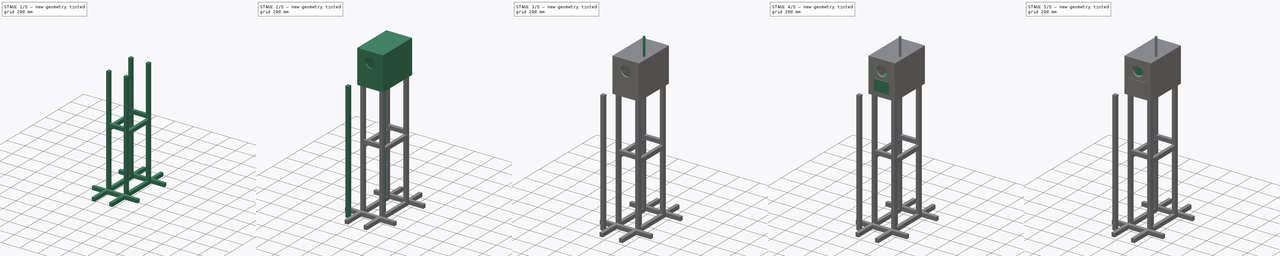
[diagram: build sequence overview — one tinted view per stage of 5, left to right]
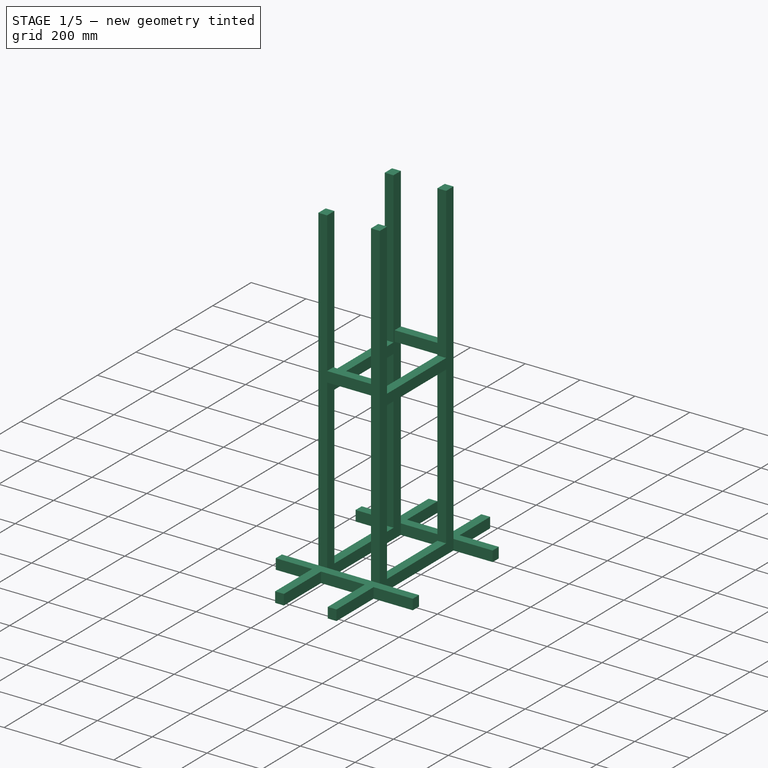
[diagram: stage 1 of 5 — iso view after this stage's code; geometry added in this stage tinted green]
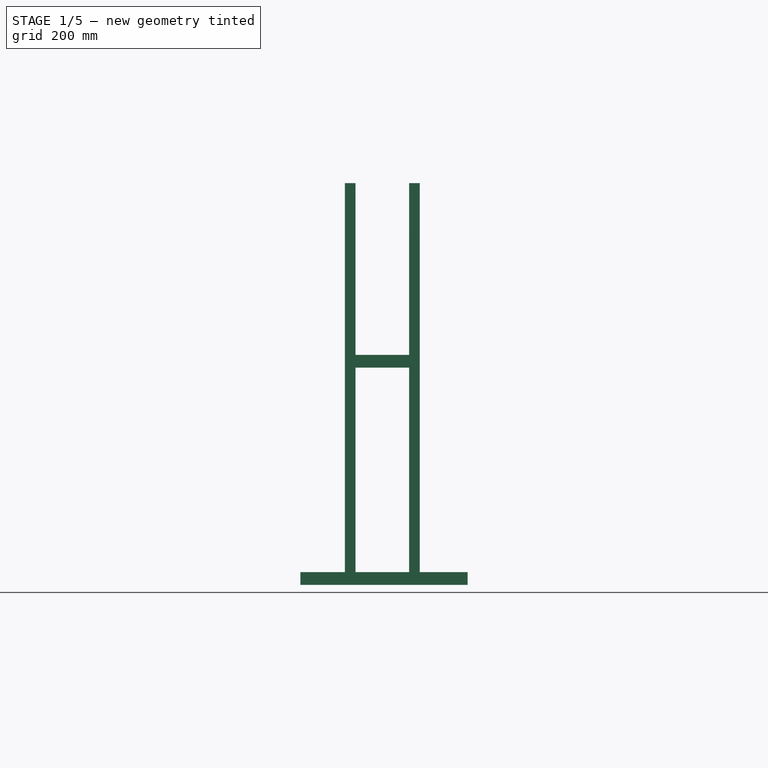
[diagram: stage 1 of 5 — front view after this stage's code; geometry added in this stage tinted green]
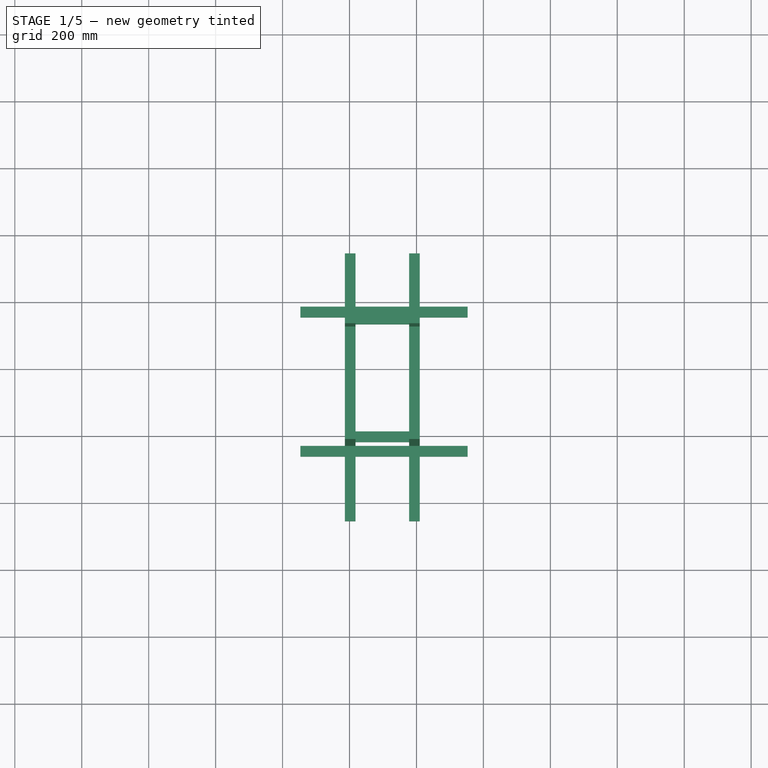
[diagram: stage 1 of 5 — top view after this stage's code; geometry added in this stage tinted green]
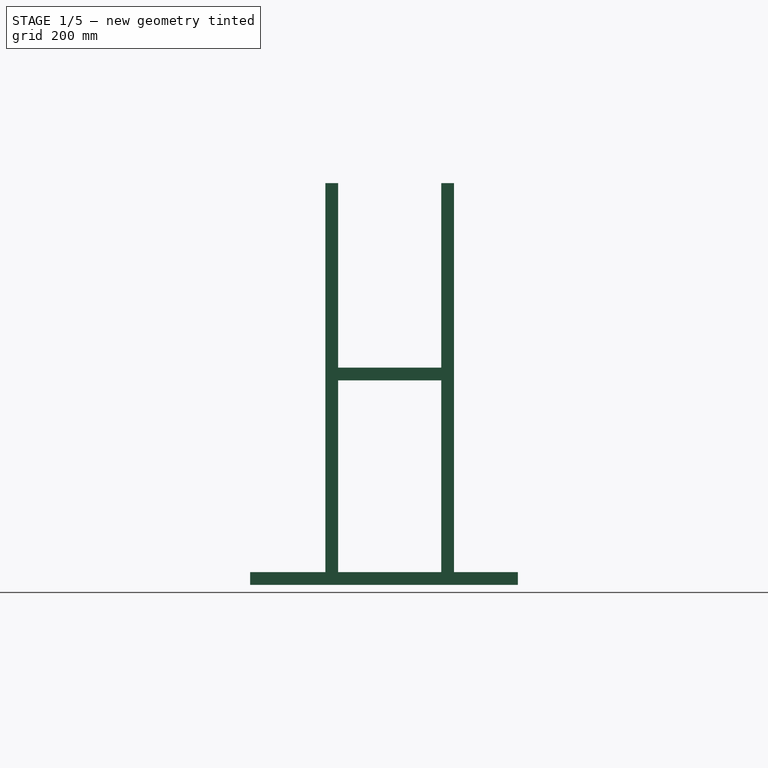
[diagram: stage 1 of 5 — right view after this stage's code; geometry added in this stage tinted green]
FCSTD DOCUMENT  (FreeCAD 0.18R15860 (Git))
Label: physical_model
License: All rights reserved
LicenseURL: http://en.wikipedia.org/wiki/All_rights_reserved
objects: Part::Box×27, Sketcher::SketchObject×13, PartDesign::Pad×10, PartDesign::Body×10, Part::Cut×8, Part::Cylinder×7, Part::Compound×5, App::DocumentObjectGroup×5, Part::Fuse×1, PartDesign::Fillet×1, PartDesign::Revolution×1
note: 94 computed .brp shape members not serialized (recipe doc carries the construction recipe); baked Part::Feature solids carry a one-line shape summary decoded from their .brp

FEATURE [Part::Box] Box025  label="pricka"
  AttacherType = Attacher::AttachEngine3D
  Height = 308
  Length = 32
  Placement = pos=(178,117,-599) rot=(1,0,0;1.5708rad)
  Width = 38
FEATURE [Part::Box] Box026  label="noha001"
  AttacherType = Attacher::AttachEngine3D
  Height = 1200
  Length = 32
  Placement = pos=(178,117,-1210) rot=(0,0,1;0rad)
  Width = 38
FEATURE [Part::Box] Box027  label="noha002"
  AttacherType = Attacher::AttachEngine3D
  Height = 1200
  Length = 32
  Placement = pos=(-14,117,-1210) rot=(0,0,1;0rad)
  Width = 38
FEATURE [Part::Box] Box028  label="noha003"
  AttacherType = Attacher::AttachEngine3D
  Height = 1200
  Length = 32
  Placement = pos=(-14,-229,-1210) rot=(0,0,1;0rad)
  Width = 38
FEATURE [Part::Box] Box029  label="noha004"
  AttacherType = Attacher::AttachEngine3D
  Height = 1200
  Length = 32
  Placement = pos=(178,-229,-1210) rot=(0,0,1;0rad)
  Width = 38
FEATURE [Part::Box] Box030  label="pricka001"
  AttacherType = Attacher::AttachEngine3D
  Height = 308
  Length = 32
  Placement = pos=(-14,117,-599) rot=(1,0,0;1.5708rad)
  Width = 38
FEATURE [Part::Box] Box031  label="pricka002"
  AttacherType = Attacher::AttachEngine3D
  Height = 160
  Length = 32
  Placement = pos=(18,123,-561) rot=(0.57735,0.57735,0.57735;2.0944rad)
  Width = 38
FEATURE [Part::Box] Box032  label="pricka003"
  AttacherType = Attacher::AttachEngine3D
  Height = 160
  Length = 32
  Placement = pos=(18,-229,-561) rot=(0.57735,0.57735,0.57735;2.0944rad)
  Width = 38
FEATURE [Part::Box] Box033  label="pricka004"
  AttacherType = Attacher::AttachEngine3D
  Height = 500
  Length = 32
  Placement = pos=(-147,-261,-1210) rot=(0.57735,0.57735,0.57735;2.0944rad)
  Width = 38
FEATURE [Part::Box] Box034  label="pricka005"
  AttacherType = Attacher::AttachEngine3D
  Height = 800
  Length = 32
  Placement = pos=(-14,346,-1210) rot=(1,0,0;1.5708rad)
  Width = 38
FEATURE [Part::Box] Box035  label="pricka006"
  AttacherType = Attacher::AttachEngine3D
  Height = 800
  Length = 32
  Placement = pos=(178,346,-1210) rot=(1,0,0;1.5708rad)
  Width = 38
FEATURE [Part::Box] Box036  label="pricka007"
  AttacherType = Attacher::AttachEngine3D
  Height = 500
  Length = 32
  Placement = pos=(-147,155,-1210) rot=(0.57735,0.57735,0.57735;2.0944rad)
  Width = 38
FEATURE [App::DocumentObjectGroup] Group003  label="spodni pricky"
  Group = -> [Box033,Box034,Box035,Box036]
FEATURE [App::DocumentObjectGroup] Group004  label="vrchni pricky"
  Group = -> [Box030,Box031,Box032,Box025]
FEATURE [App::DocumentObjectGroup] Group002  label="Group"
  Group = -> [Box019,Box026,Box027,Box028,Box029,Group003,Group004]
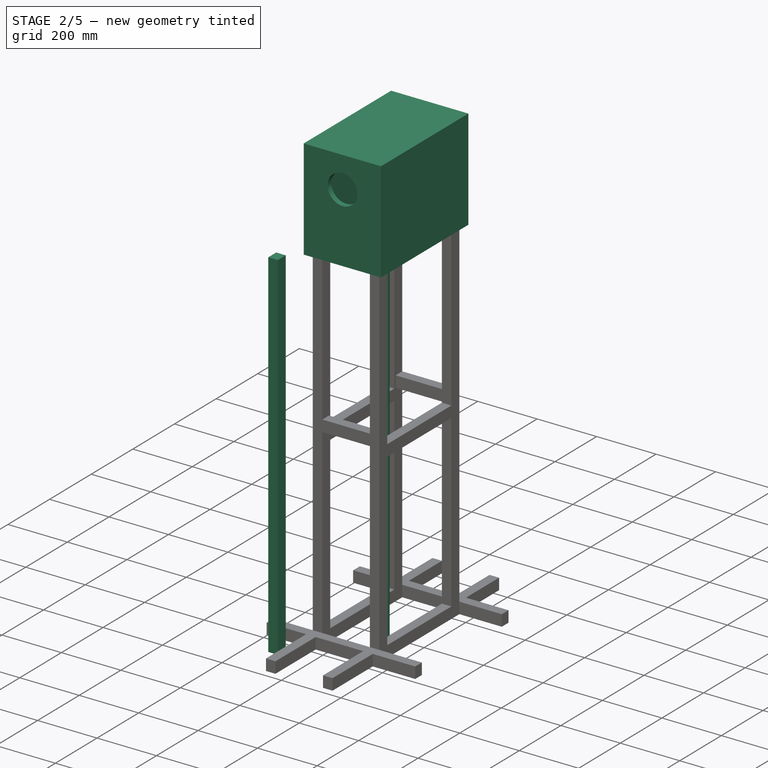
[diagram: stage 2 of 5 — iso view after this stage's code; geometry added in this stage tinted green]
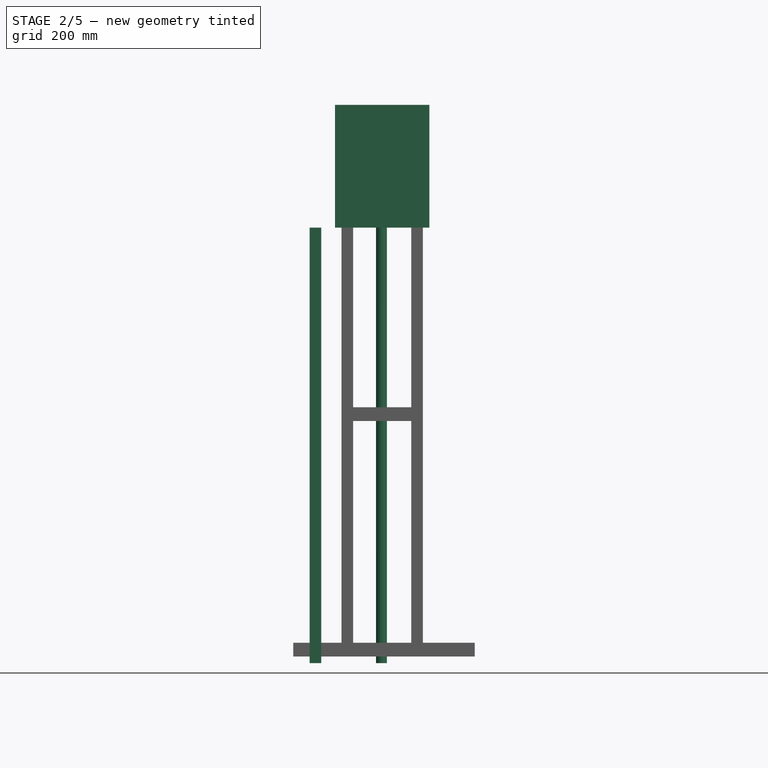
[diagram: stage 2 of 5 — front view after this stage's code; geometry added in this stage tinted green]
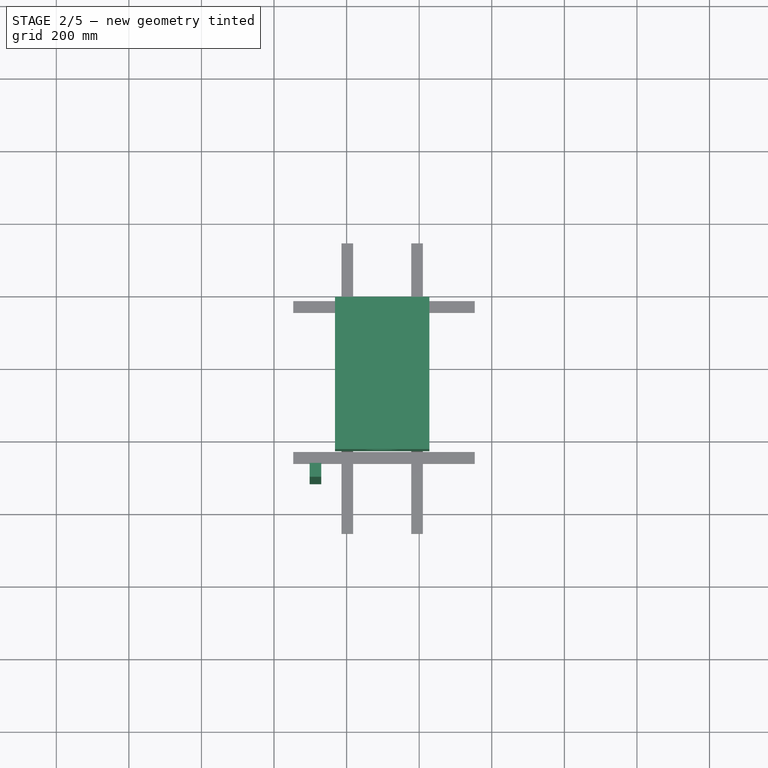
[diagram: stage 2 of 5 — top view after this stage's code; geometry added in this stage tinted green]
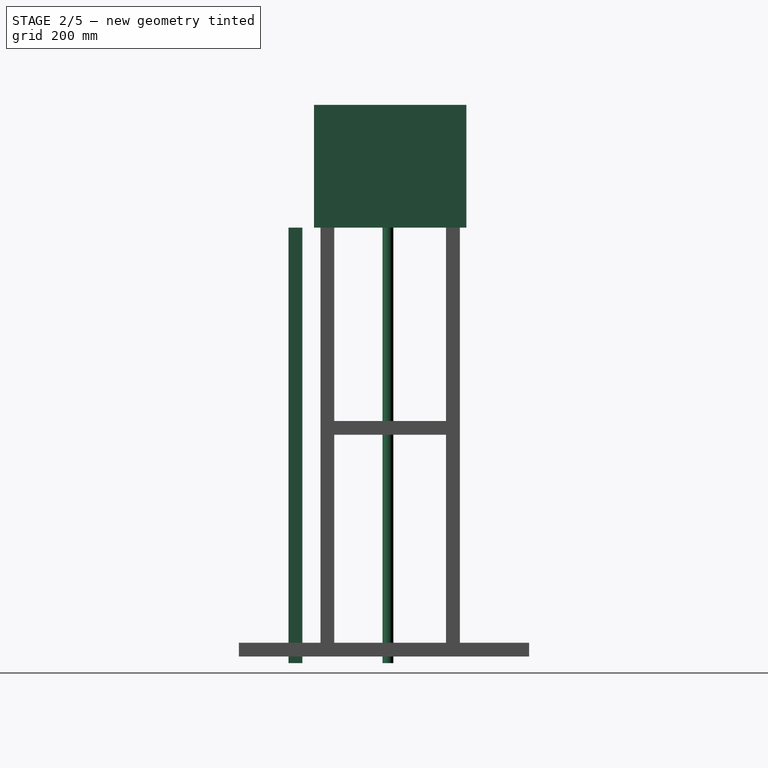
[diagram: stage 2 of 5 — right view after this stage's code; geometry added in this stage tinted green]
FEATURE [Part::Box] Box003  label="Front panel"
  AttacherType = Attacher::AttachEngine3D
  Height = 320
  Length = 260
  Placement = pos=(-32,-247,-10) rot=(0,0,1;0rad)
  Width = 18
FEATURE [Sketcher::SketchObject] Sketch011
  MapMode = 5
  Placement = pos=(0,0,0) rot=(1,0,0;1.5708rad)
  Support = -> [XZ_Plane009]
  sketch-geometry (1):
    g0: Circle CenterX=98.601 CenterY=204.673 CenterZ=0 NormalX=0 NormalY=0 NormalZ=1 AngleXU=0 Radius=50
  constraints (1):
    c: Radius(g0) = 50
FEATURE [PartDesign::Pad] Pad009
  Length = 40
  Length2 = 100
  Placement = pos=(0,0,0) rot=(1,0,0;1.5708rad)
  Profile = -> Sketch011
  Refine = true
  Type = 0
FEATURE [PartDesign::Body] Body009
  Group = -> [Sketch011,Pad009]
  Origin = -> Origin009
  Placement = pos=(0,-212,0) rot=(0,0,1;0rad)
  Tip = -> Pad009
FEATURE [Part::Cut] Cut003  label="Predni strana"
  Base = -> Box003
  Refine = true
  Tool = -> Body009
FEATURE [Part::Box] Box004  label="Spodni hrana"
  AttacherType = Attacher::AttachEngine3D
  Height = 18
  Length = 260
  Placement = pos=(-32,-247,-28) rot=(0,0,1;0rad)
  Width = 420
FEATURE [Part::Box] Box007  label="Vrchni hrana"
  AttacherType = Attacher::AttachEngine3D
  Height = 18
  Length = 224
  Placement = pos=(-14,-229,292) rot=(0,0,1;0rad)
  Width = 384
FEATURE [Part::Cylinder] Cylinder006  label="Drzak - tycka"
  Angle = 360
  AttacherType = Attacher::AttachEngine3D
  Height = 1200
  Placement = pos=(96,-43,-28) rot=(0,1,0;3.14159rad)
  Radius = 15
FEATURE [Part::Box] Box010  label="Leva strana"
  AttacherType = Attacher::AttachEngine3D
  Height = 320
  Length = 18
  Placement = pos=(-32,-229,-10) rot=(0,0,1;0rad)
  Width = 384
FEATURE [Part::Box] Box011  label="Prava strana"
  AttacherType = Attacher::AttachEngine3D
  Height = 320
  Length = 18
  Placement = pos=(210,-229,-10) rot=(0,0,1;0rad)
  Width = 384
FEATURE [Part::Box] Box012  label="zadni strana"
  AttacherType = Attacher::AttachEngine3D
  Height = 320
  Length = 260
  Placement = pos=(-32,153,-10) rot=(0,0,1;0rad)
  Width = 18
FEATURE [Part::Box] Box013  label="Cube002"
  AttacherType = Attacher::AttachEngine3D
  Height = 70
  Length = 180
  Placement = pos=(-11,148,0) rot=(0,0,1;0rad)
  Width = 40
FEATURE [Part::Cut] Cut008  label="Zadni strana"
  Base = -> Box012
  Placement = pos=(0,2,0) rot=(0,0,1;0rad)
  Refine = true
  Tool = -> Box013
FEATURE [App::DocumentObjectGroup] Group001  label="Strany"
  Group = -> [Box010,Box007,Box004,Cut003,Box011,Cut008]
FEATURE [Part::Box] Box019  label="tycka z hornbachu - predloha"
  AttacherType = Attacher::AttachEngine3D
  Height = 1200
  Length = 32
  Placement = pos=(-102,-317,-1228) rot=(0,0,1;0rad)
  Width = 38
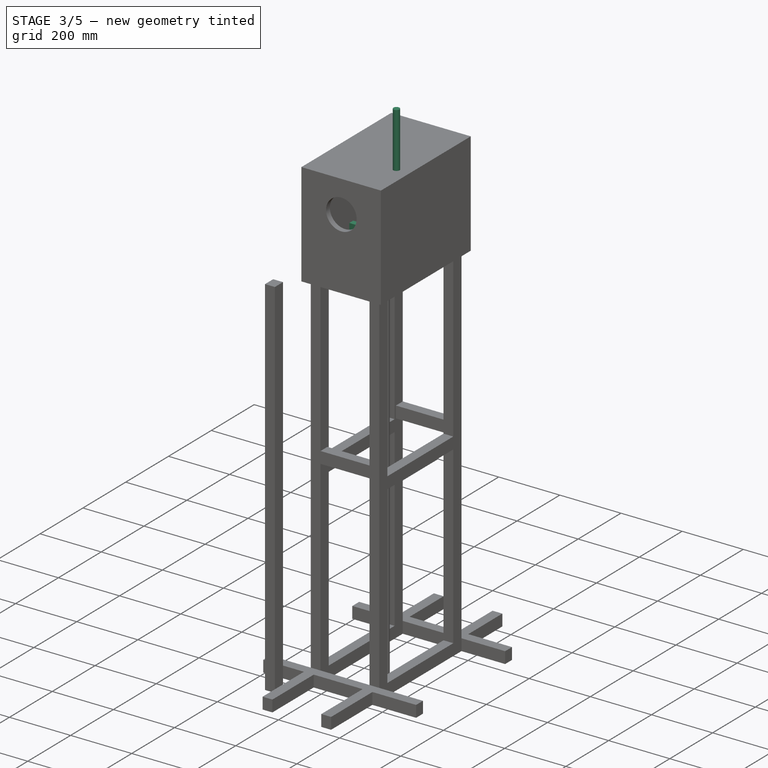
[diagram: stage 3 of 5 — iso view after this stage's code; geometry added in this stage tinted green]
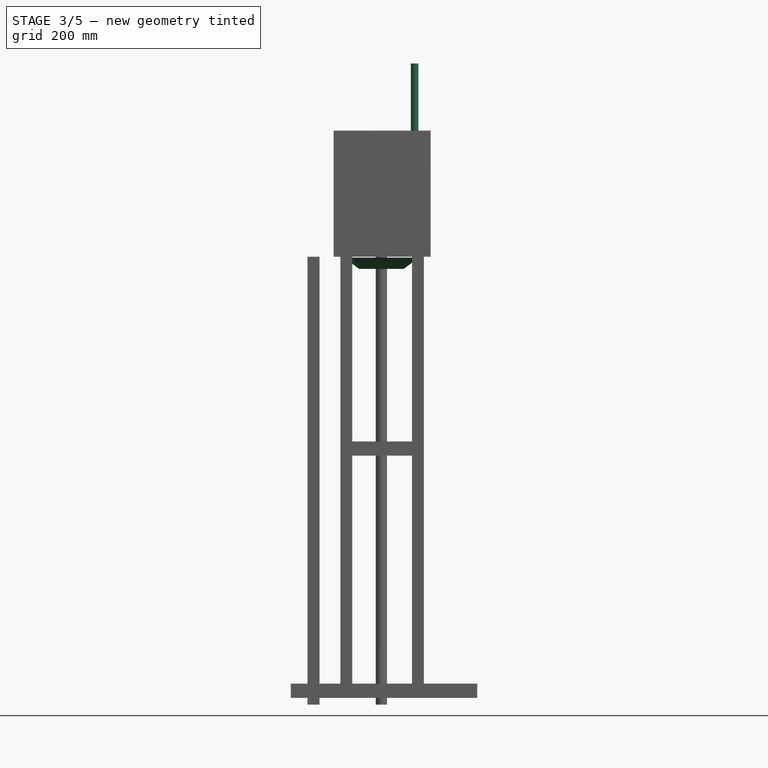
[diagram: stage 3 of 5 — front view after this stage's code; geometry added in this stage tinted green]
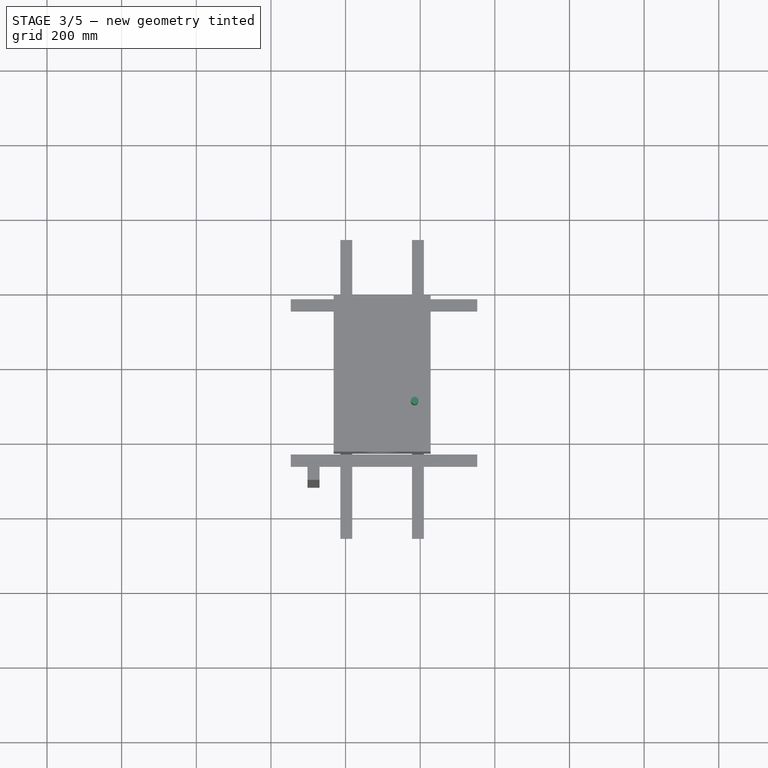
[diagram: stage 3 of 5 — top view after this stage's code; geometry added in this stage tinted green]
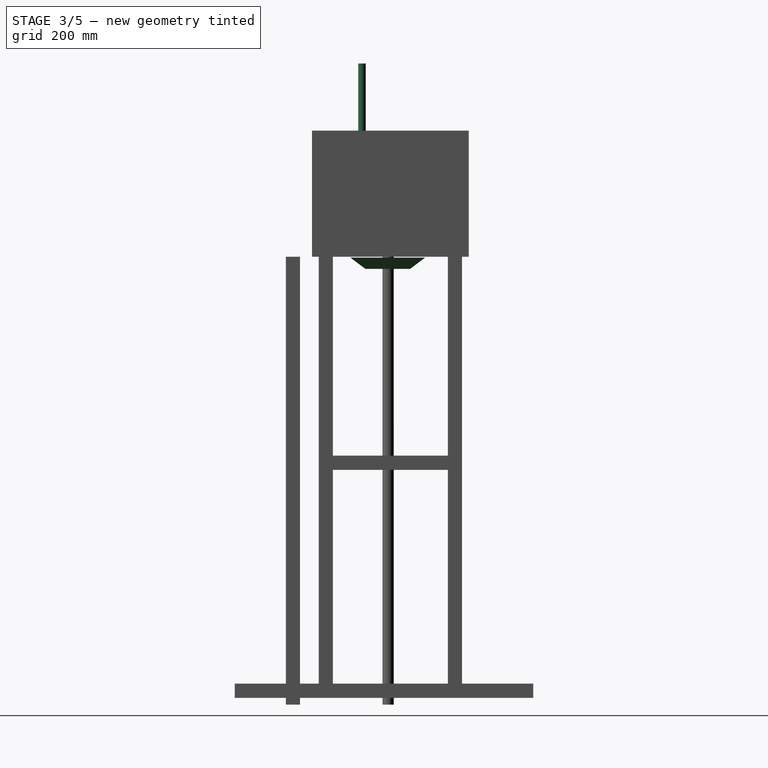
[diagram: stage 3 of 5 — right view after this stage's code; geometry added in this stage tinted green]
FEATURE [Part::Box] Box006  label="zasekavatko tiskarny"
  AttacherType = Attacher::AttachEngine3D
  Height = 20
  Length = 224
  Placement = pos=(-14,-49,54) rot=(0,0,1;0rad)
  Width = 18
FEATURE [Part::Cylinder] Cylinder002  label="Klacek na blesk"
  Angle = 360
  AttacherType = Attacher::AttachEngine3D
  Height = 500
  Placement = pos=(185,-113,-10) rot=(0,0,1;0rad)
  Radius = 10
FEATURE [Part::Box] Box008  label="Zdroj tiskarny"
  AttacherType = Attacher::AttachEngine3D
  Height = 35
  Length = 140
  Placement = pos=(0,59,265) rot=(0,0,1;0rad)
  Width = 70
FEATURE [Part::Box] Box009  label="prodluzovacka"
  AttacherType = Attacher::AttachEngine3D
  Height = 50
  Length = 170
  Placement = pos=(0,549,145) rot=(0,0,1;0rad)
  Width = 60
FEATURE [Part::Cylinder] Cylinder003  label="Cylinder002"
  Angle = 360
  AttacherType = Attacher::AttachEngine3D
  Height = 20
  Placement = pos=(33,579,175) rot=(0,0,1;0rad)
  Radius = 20
FEATURE [Part::Cylinder] Cylinder004  label="Cylinder003"
  Angle = 360
  AttacherType = Attacher::AttachEngine3D
  Height = 20
  Placement = pos=(83,579,175) rot=(0,0,1;0rad)
  Radius = 20
FEATURE [Part::Cylinder] Cylinder005  label="Cylinder004"
  Angle = 360
  AttacherType = Attacher::AttachEngine3D
  Height = 20
  Placement = pos=(134,579,175) rot=(0,0,1;0rad)
  Radius = 20
FEATURE [Part::Cut] Cut004
  Base = -> Box009
  Refine = true
  Tool = -> Cylinder003
FEATURE [Part::Cut] Cut005
  Base = -> Cut004
  Refine = true
  Tool = -> Cylinder005
FEATURE [Part::Cut] Cut006  label="Prodluzka"
  Base = -> Cut005
  Placement = pos=(363,-579,130) rot=(0,-1,0;1.5708rad)
  Refine = true
  Tool = -> Cylinder004
FEATURE [Sketcher::SketchObject] Sketch012
  MapMode = 5
  Placement = pos=(0,0,0) rot=(0.57735,0.57735,0.57735;2.0944rad)
  Support = -> [YZ_Plane010]
  sketch-geometry (4):
    g0: LineSegment StartX=0 StartY=-12.6665 StartZ=0 EndX=100 EndY=-12.4743 EndZ=0
    g1: LineSegment StartX=60 StartY=-42.4743 StartZ=0 EndX=0 EndY=-42.6665 EndZ=0
    g2: LineSegment StartX=0 StartY=-42.6665 StartZ=0 EndX=0 EndY=-12.6665 EndZ=0
    g3: LineSegment StartX=60 StartY=-42.4743 StartZ=0 EndX=100 EndY=-12.4743 EndZ=0
  constraints (10):
    c: Coincident(g2,g1)
    c: Coincident(g2,g0)
    c: Coincident(g3,g1)
    c: Coincident(g3,g0)
    c: DistanceX(g0,g-1) = 0
    c: DistanceX(g1,g-1) = 0
    c: DistanceY(g1,g0) = 30
    c: DistanceY(g1,g0) = 30
    c: DistanceX(g1,g1) = 60
    c: DistanceX(g1,g0) = 40
FEATURE [PartDesign::Revolution] Revolution
  Angle = 360
  Axis = (-2e-16,3e-16,1)
  Base = (0,0,0)
  Placement = pos=(0,0,0) rot=(0.57735,0.57735,0.57735;2.0944rad)
  Profile = -> Sketch012
  ReferenceAxis = -> Sketch012 [V_Axis]
  Refine = true
  Reversed = true
FEATURE [PartDesign::Body] Body010
  Group = -> [Sketch012,Revolution]
  Origin = -> Origin010
  Tip = -> Revolution
FEATURE [Part::Compound] Compound004  label="Drzak"
  Links = -> [Body010]
  Placement = pos=(96,-44,-18) rot=(0,0,1;0rad)
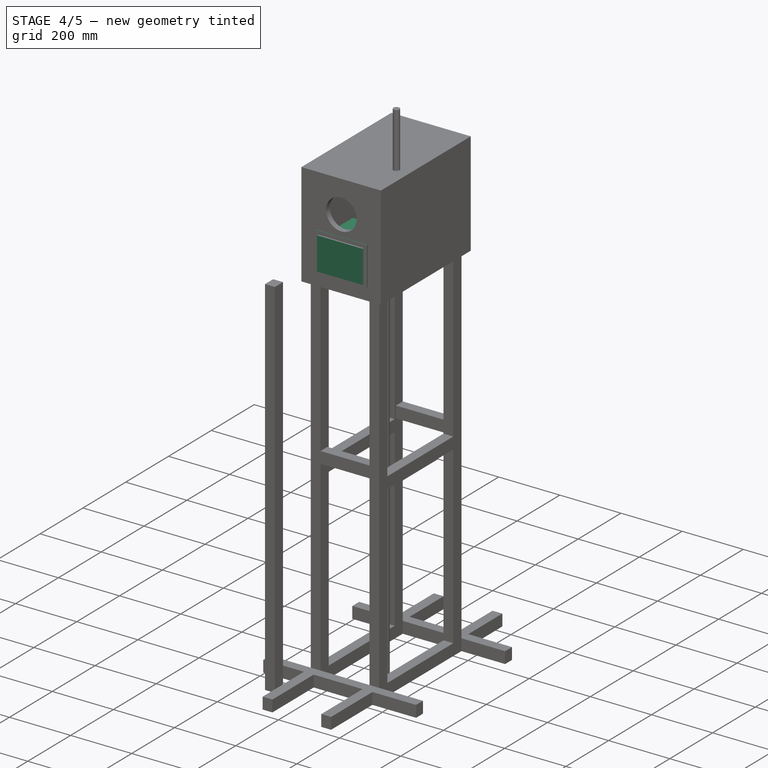
[diagram: stage 4 of 5 — iso view after this stage's code; geometry added in this stage tinted green]
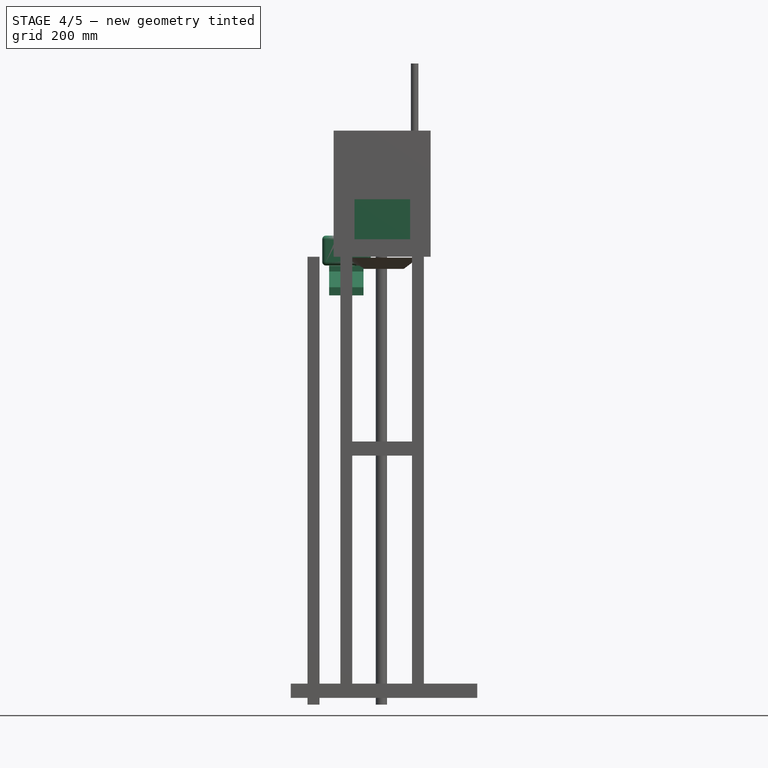
[diagram: stage 4 of 5 — front view after this stage's code; geometry added in this stage tinted green]
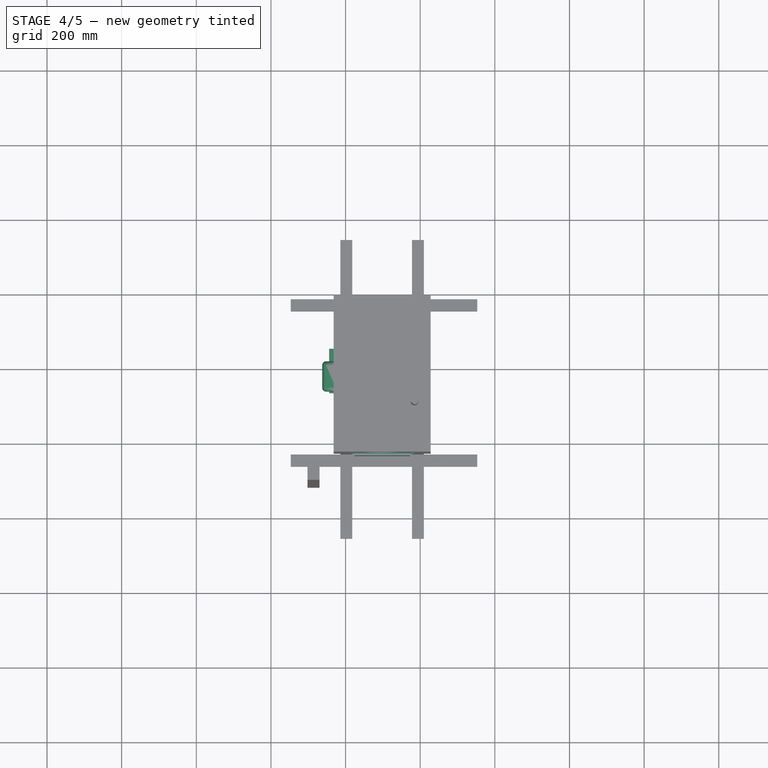
[diagram: stage 4 of 5 — top view after this stage's code; geometry added in this stage tinted green]
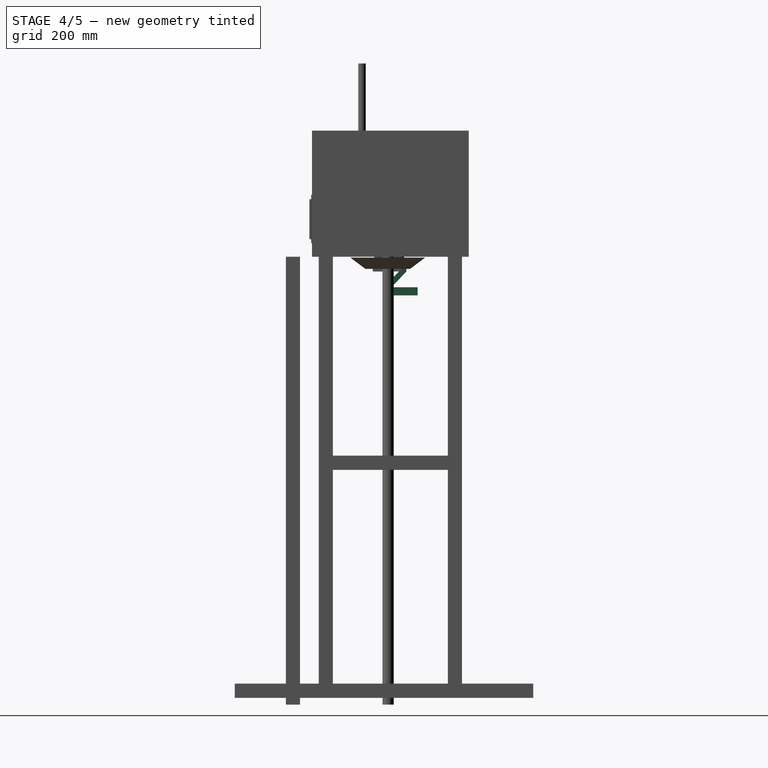
[diagram: stage 4 of 5 — right view after this stage's code; geometry added in this stage tinted green]
FEATURE [App::DocumentObjectGroup] Group  label="printer"
  Group = -> [Cut,Fusion,Body005]
FEATURE [PartDesign::Pad] Pad
  Length = 80
  Length2 = 100
  Placement = pos=(0,0,0) rot=(1,0,0;1.5708rad)
  Profile = -> Sketch
  Refine = true
  Type = 0
FEATURE [PartDesign::Fillet] Fillet
  Base = -> Pad [Edge8,Edge17,Edge14,Edge11,Edge20,Edge5,Edge2,Edge1,Edge24,Edge4,Edge7,Edge6,Edge3,Edge9,Edge12,Edge15,Edge18,Edge21,Edge23,Edge22,Edge19,Edge16,Edge13,Edge10]
  BaseFeature = -> Pad
  Placement = pos=(0,0,0) rot=(1,0,0;1.5708rad)
  Radius = 10
FEATURE [Sketcher::SketchObject] Sketch009
  MapMode = 5
  Placement = pos=(0,0,0) rot=(1,0,0;1.5708rad)
  Support = -> [XZ_Plane007]
  sketch-geometry (10):
    g0: LineSegment StartX=45 StartY=-27.666 StartZ=0 EndX=-45 EndY=-27.666 EndZ=0
    g1: LineSegment StartX=-45 StartY=-27.666 StartZ=0 EndX=-45 EndY=-5.666 EndZ=0
    g2: LineSegment StartX=-75 StartY=52.334 StartZ=0 EndX=15 EndY=52.334 EndZ=0
    g3: LineSegment StartX=45 StartY=-5.666 StartZ=0 EndX=45 EndY=-27.666 EndZ=0
    g4: LineSegment StartX=-75 StartY=52.334 StartZ=0 EndX=-75 EndY=36.334 EndZ=0
    g5: LineSegment StartX=15 StartY=52.334 StartZ=0 EndX=15 EndY=36.334 EndZ=0
    g6: LineSegment StartX=45 StartY=-5.666 StartZ=0 EndX=-25 EndY=-5.666 EndZ=0
    g7: LineSegment StartX=-75 StartY=36.334 StartZ=0 EndX=-5 EndY=36.334 EndZ=0
    g8: LineSegment StartX=-45 StartY=-5.666 StartZ=0 EndX=-5 EndY=36.334 EndZ=0
    g9: LineSegment StartX=-25 StartY=-5.666 StartZ=0 EndX=15 EndY=36.334 EndZ=0
  constraints (28):
    c: Coincident(g1,g0)
    c: Vertical(g1)
    c: Horizontal(g2)
    c: Coincident(g3,g0)
    c: Vertical(g3)
    c: DistanceX(g0,g0) = 90
    c: DistanceX(g2,g2) = 90
    c: DistanceY(g0,g1) = 22
    c: DistanceY(g0,g3) = 22
    c: Coincident(g4,g2)
    c: Vertical(g4)
    c: Coincident(g5,g2)
    c: Vertical(g5)
    c: DistanceY(g4,g2) = 16
    c: DistanceY(g5,g2) = 16
    c: Coincident(g6,g3)
    c: Horizontal(g6)
    c: DistanceX(g6,g3) = 70
    c: Coincident(g7,g4)
    c: Horizontal(g7)
    c: DistanceX(g4,g7) = 70
    c: DistanceY(g0,g2) = 80
    c: Coincident(g8,g1)
    c: Coincident(g8,g7)
    c: Coincident(g9,g6)
    c: Coincident(g9,g5)
    c: DistanceX(g2,g3) = 30
    c: Symmetric(g0,g0,g-2)
FEATURE [PartDesign::Pad] Pad008
  Length = 92
  Length2 = 100
  Placement = pos=(0,0,0) rot=(1,0,0;1.5708rad)
  Profile = -> Sketch009
  Refine = true
  Type = 0
FEATURE [PartDesign::Body] Body007  label="stand"
  Group = -> [Sketch009,Pad008]
  Origin = -> Origin007
  Tip = -> Pad008
FEATURE [Part::Cylinder] Cylinder
  Angle = 360
  AttacherType = Attacher::AttachEngine3D
  Height = 50
  Placement = pos=(4,-44,-38) rot=(0,0,1;0rad)
  Radius = 10
FEATURE [Part::Cylinder] Cylinder001
  Angle = 360
  AttacherType = Attacher::AttachEngine3D
  Height = 20
  Placement = pos=(-31,-46,34) rot=(0,0,1;0rad)
  Radius = 3
FEATURE [Part::Cut] Cut001
  Base = -> Body007
  Refine = true
  Tool = -> Cylinder
FEATURE [Part::Cut] Cut002  label="stand001"
  Base = -> Cut001
  Placement = pos=(-44,-9,-104) rot=(0,0,1;1.5708rad)
  Refine = true
  Tool = -> Cylinder001
FEATURE [Part::Box] Box  label="RaspberryPi"
  AttacherType = Attacher::AttachEngine3D
  Height = 15
  Length = 92.9
  Placement = pos=(56,-203,41) rot=(1,0,0;1.5708rad)
  Width = 61.5
FEATURE [Part::Box] Box001  label="Cube"
  AttacherType = Attacher::AttachEngine3D
  Height = 30
  Length = 170
  Placement = pos=(0,216,0) rot=(0,0,1;0rad)
  Width = 130
FEATURE [Part::Box] Box002  label="Cube001"
  AttacherType = Attacher::AttachEngine3D
  Height = 15
  Length = 148.9
  Placement = pos=(10,227,20) rot=(0,0,1;0rad)
  Width = 106.96
FEATURE [Part::Compound] Compound003  label="Screen"
  Links = -> [Box001,Box002]
  Placement = pos=(14,-219,-208) rot=(1,0,0;1.5708rad)
FEATURE [Part::Box] Box005  label="drzak kamery"
  AttacherType = Attacher::AttachEngine3D
  Height = 18
  Length = 224
  Placement = pos=(-14,-133,65) rot=(0,0,1;0rad)
  Width = 100
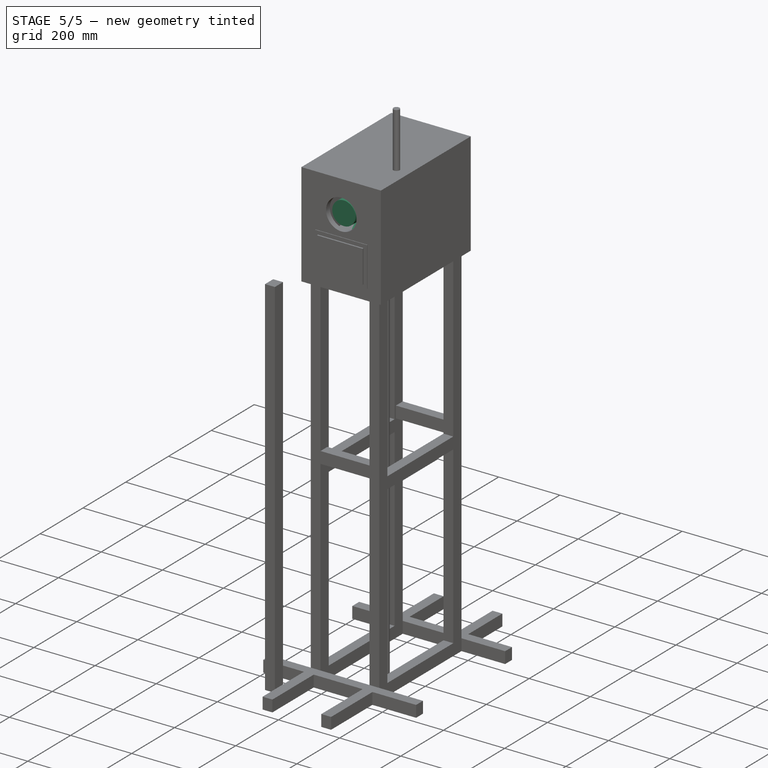
[diagram: stage 5 of 5 — iso view after this stage's code; geometry added in this stage tinted green]
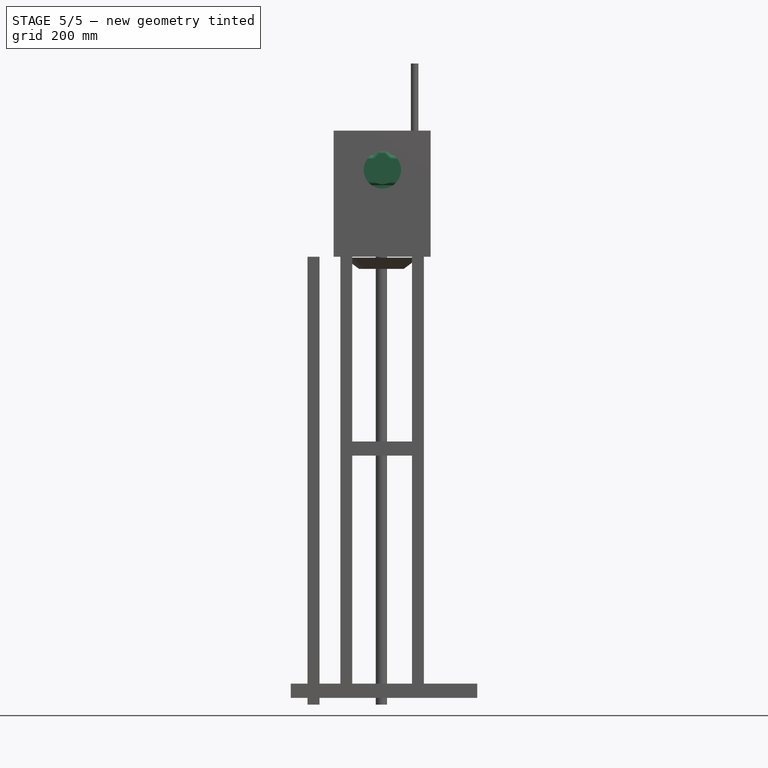
[diagram: stage 5 of 5 — front view after this stage's code; geometry added in this stage tinted green]
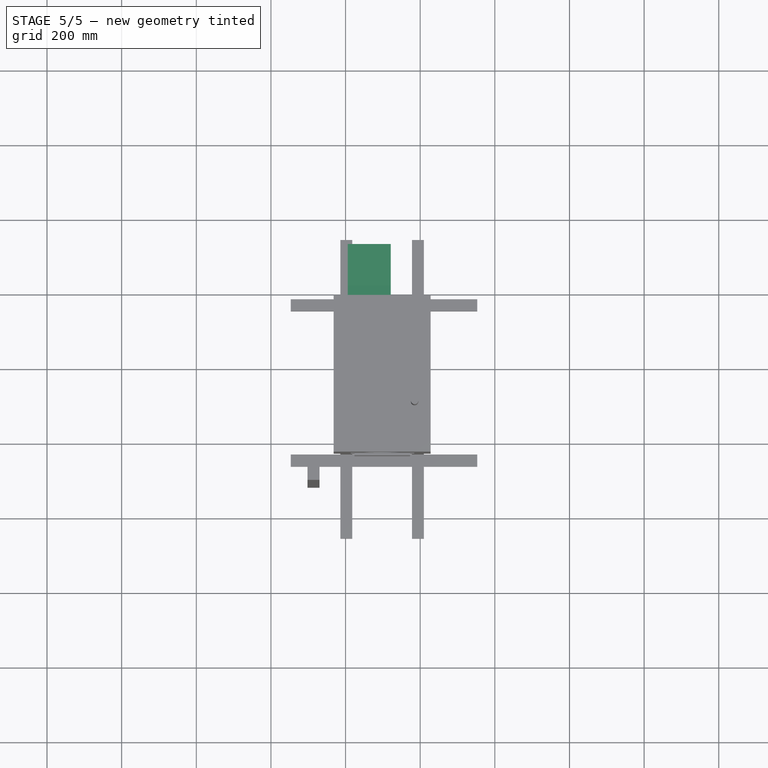
[diagram: stage 5 of 5 — top view after this stage's code; geometry added in this stage tinted green]
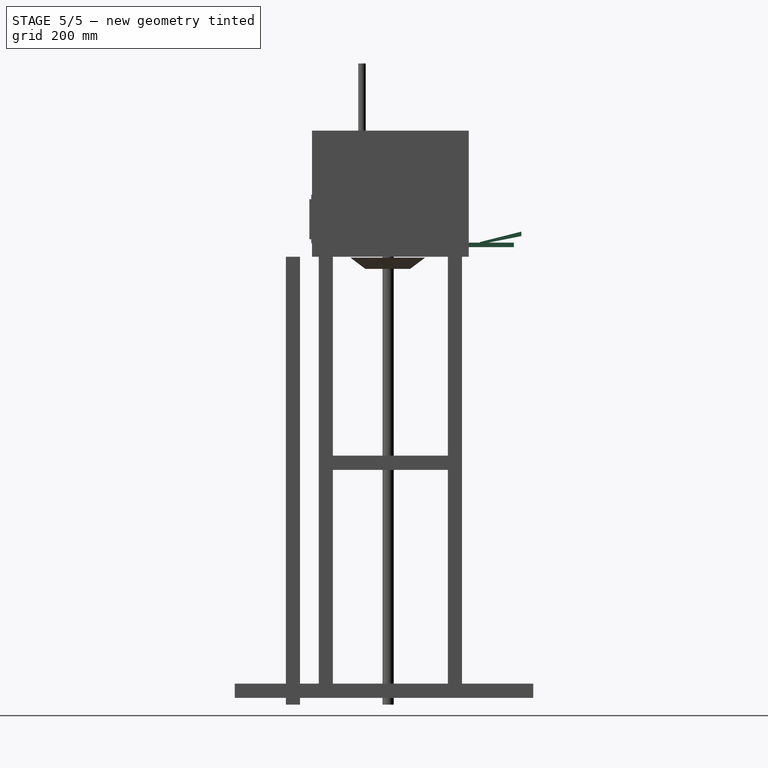
[diagram: stage 5 of 5 — right view after this stage's code; geometry added in this stage tinted green]
FEATURE [Sketcher::SketchObject] Sketch
  MapMode = 5
  Placement = pos=(0,0,0) rot=(1,0,0;1.5708rad)
  Support = -> [XZ_Plane001]
  sketch-geometry (8):
    g0: LineSegment StartX=-62.473 StartY=-51.4671 StartZ=0 EndX=67.527 EndY=-51.4671 EndZ=0
    g1: LineSegment StartX=67.527 StartY=-51.4671 StartZ=0 EndX=67.527 EndY=28.5329 EndZ=0
    g2: LineSegment StartX=67.527 StartY=28.5329 StartZ=0 EndX=27.527 EndY=28.5329 EndZ=0
    g3: LineSegment StartX=27.527 StartY=28.5329 StartZ=0 EndX=13.0149 EndY=43.5314 EndZ=0
    g4: LineSegment StartX=13.0149 StartY=43.5314 StartZ=0 EndX=-6.9851 EndY=43.5314 EndZ=0
    g5: LineSegment StartX=-6.9851 StartY=43.5314 StartZ=0 EndX=-22.473 EndY=28.5329 EndZ=0
    g6: LineSegment StartX=-22.473 StartY=28.5329 StartZ=0 EndX=-62.473 EndY=28.5329 EndZ=0
    g7: LineSegment StartX=-62.473 StartY=28.5329 StartZ=0 EndX=-62.473 EndY=-51.4671 EndZ=0
  constraints (25):
    c: Coincident(g1,g0)
    c: Vertical(g1)
    c: Coincident(g2,g1)
    c: Horizontal(g2)
    c: Horizontal(g4)
    c: Coincident(g5,g4)
    c: Horizontal(g6)
    c: Coincident(g7,g6)
    c: Coincident(g7,g0)
    c: Vertical(g7)
    c: DistanceX(g0,g0) = 130
    c: DistanceX(g6,g6) = 40
    c: DistanceX(g3,g1) = 40
    c: DistanceX(g6,g5) = 0
    c: DistanceX(g2,g3) = 0
    c: DistanceX(g4,g4) = 20
    c: Distance(g6,g4) = 21.56
    c: Distance(g3,g3) = 20.87
    c: DistanceY(g0,g6) = 80
    c: DistanceY(g5,g6) = 0
    c: DistanceY(g0,g1) = 80
    c: DistanceX(g4,g3) = 0
    c: DistanceY(g3,g4) = 0
    c: DistanceY(g3,g2) = 0
    c: Parallel(g6,g0)
FEATURE [Sketcher::SketchObject] Sketch001
  MapMode = 5
  Placement = pos=(0,0,0) rot=(1,0,0;1.5708rad)
  Support = -> [XZ_Plane001]
  sketch-geometry (1):
    g0: Circle CenterX=3.06311 CenterY=-10.7297 CenterZ=0 NormalX=0 NormalY=0 NormalZ=1 AngleXU=0 Radius=38
  constraints (1):
    c: Radius(g0) = 38
FEATURE [Sketcher::SketchObject] Sketch002
  MapMode = 5
  Placement = pos=(0,0,0) rot=(1,0,0;1.5708rad)
  Support = -> [XZ_Plane]
  sketch-geometry (4):
    g0: LineSegment StartX=-90 StartY=32.5 StartZ=0 EndX=90 EndY=32.5 EndZ=0
    g1: LineSegment StartX=90 StartY=32.5 StartZ=0 EndX=90 EndY=-32.5 EndZ=0
    g2: LineSegment StartX=90 StartY=-32.5 StartZ=0 EndX=-90 EndY=-32.5 EndZ=0
    g3: LineSegment StartX=-90 StartY=-32.5 StartZ=0 EndX=-90 EndY=32.5 EndZ=0
  constraints (10):
    c: Coincident(g0,g1)
    c: Coincident(g1,g2)
    c: Coincident(g2,g3)
    c: Coincident(g3,g0)
    c: Horizontal(g2)
    c: Vertical(g1)
    c: Vertical(g3)
    c: DistanceX(g0,g0) = 180
    c: DistanceY(g2,g0) = 65
    c: Symmetric(g0,g0,g-2)
FEATURE [PartDesign::Pad] Pad002
  Length = 145
  Length2 = 100
  Placement = pos=(0,0,0) rot=(1,0,0;1.5708rad)
  Profile = -> Sketch002
  Refine = true
  Type = 0
FEATURE [PartDesign::Body] Body
  Group = -> [Sketch002,Pad002]
  Origin = -> Origin
  Tip = -> Pad002
FEATURE [Sketcher::SketchObject] Sketch003
  MapMode = 5
  Placement = pos=(0,0,0) rot=(1,0,0;1.5708rad)
  Support = -> [XZ_Plane002]
  sketch-geometry (4):
    g0: LineSegment StartX=-51.4602 StartY=3.81562 StartZ=0 EndX=78.5398 EndY=3.81562 EndZ=0
    g1: LineSegment StartX=78.5398 StartY=3.81562 StartZ=0 EndX=78.5398 EndY=-26.1844 EndZ=0
    g2: LineSegment StartX=78.5398 StartY=-26.1844 StartZ=0 EndX=-51.4602 EndY=-26.1844 EndZ=0
    g3: LineSegment StartX=-51.4602 StartY=-26.1844 StartZ=0 EndX=-51.4602 EndY=3.81562 EndZ=0
  constraints (10):
    c: Coincident(g0,g1)
    c: Coincident(g1,g2)
    c: Coincident(g2,g3)
    c: Coincident(g3,g0)
    c: Horizontal(g0)
    c: Horizontal(g2)
    c: Vertical(g1)
    c: Vertical(g3)
    c: DistanceX(g0,g0) = 130
    c: DistanceY(g2,g0) = 30
FEATURE [PartDesign::Pad] Pad003
  Length = 150
  Length2 = 100
  Placement = pos=(0,0,0) rot=(1,0,0;1.5708rad)
  Profile = -> Sketch003
  Refine = true
  Type = 0
FEATURE [PartDesign::Body] Body002
  Group = -> [Sketch003,Pad003]
  Origin = -> Origin002
  Placement = pos=(0,2,0) rot=(0,0,1;0rad)
  Tip = -> Pad003
FEATURE [Sketcher::SketchObject] Sketch004
  MapMode = 5
  Placement = pos=(0,0,0) rot=(1,0,0;1.5708rad)
  Support = -> [XZ_Plane003]
  sketch-geometry (4):
    g0: LineSegment StartX=0 StartY=-12.7656 StartZ=0 EndX=115 EndY=-12.7656 EndZ=0
    g1: LineSegment StartX=115 StartY=-12.7656 StartZ=0 EndX=115 EndY=-24.7656 EndZ=0
    g2: LineSegment StartX=115 StartY=-24.7656 StartZ=0 EndX=0 EndY=-24.7656 EndZ=0
    g3: LineSegment StartX=0 StartY=-24.7656 StartZ=0 EndX=0 EndY=-12.7656 EndZ=0
  constraints (11):
    c: Coincident(g0,g1)
    c: Coincident(g1,g2)
    c: Coincident(g2,g3)
    c: Coincident(g3,g0)
    c: Horizontal(g0)
    c: Horizontal(g2)
    c: Vertical(g1)
    c: Vertical(g3)
    c: DistanceX(g0,g0) = 115
    c: DistanceY(g2,g0) = 12
    c: DistanceX(g0,g-1) = 0
FEATURE [PartDesign::Pad] Pad004
  Length = 190
  Length2 = 100
  Placement = pos=(0,0,0) rot=(1,0,0;1.5708rad)
  Profile = -> Sketch004
  Refine = true
  Type = 0
FEATURE [Sketcher::SketchObject] Sketch005
  MapMode = 5
  Placement = pos=(0,0,0) rot=(0.57735,0.57735,0.57735;2.0944rad)
  Support = -> [YZ_Plane003]
  sketch-geometry (4):
    g0: LineSegment StartX=-91 StartY=-17.2967 StartZ=0 EndX=20 EndY=4.7033 EndZ=0
    g1: LineSegment StartX=20 StartY=4.7033 StartZ=0 EndX=20 EndY=16.7033 EndZ=0
    g2: LineSegment StartX=20 StartY=16.7033 StartZ=0 EndX=-91 EndY=-11.2967 EndZ=0
    g3: LineSegment StartX=-91 StartY=-11.2967 StartZ=0 EndX=-91 EndY=-17.2967 EndZ=0
  constraints (11):
    c: Coincident(g0,g1)
    c: Coincident(g1,g2)
    c: Coincident(g2,g3)
    c: Coincident(g3,g0)
    c: Vertical(g1)
    c: Vertical(g3)
    c: DistanceX(g2,g1) = 111
    c: DistanceY(g0,g1) = 12
    c: DistanceY(g0,g2) = 6
    c: DistanceX(g-1,g1) = 20
    c: DistanceY(g0,g0) = 22
FEATURE [PartDesign::Body] Body003
  Group = -> [Sketch004,Pad004,Sketch005]
  Origin = -> Origin003
  Tip = -> Pad004
FEATURE [Sketcher::SketchObject] CopySketch005
  Placement = pos=(0,0,0) rot=(0.57735,0.57735,0.57735;2.0944rad)
  sketch-geometry (4):
    g0: LineSegment StartX=-91 StartY=-17.2967 StartZ=0 EndX=20 EndY=4.7033 EndZ=0
    g1: LineSegment StartX=20 StartY=4.7033 StartZ=0 EndX=20 EndY=16.7033 EndZ=0
    g2: LineSegment StartX=20 StartY=16.7033 StartZ=0 EndX=-91 EndY=-11.2967 EndZ=0
    g3: LineSegment StartX=-91 StartY=-11.2967 StartZ=0 EndX=-91 EndY=-17.2967 EndZ=0
  constraints (11):
    c: Coincident(g0,g1)
    c: Coincident(g1,g2)
    c: Coincident(g2,g3)
    c: Coincident(g3,g0)
    c: Vertical(g1)
    c: Vertical(g3)
    c: DistanceX(g2,g1) = 111
    c: DistanceY(g0,g1) = 12
    c: DistanceY(g0,g2) = 6
    c: DistanceX(g-1,g1) = 20
    c: DistanceY(g0,g0) = 22
FEATURE [PartDesign::Pad] Pad005
  Length = 115
  Length2 = 100
  Placement = pos=(0,0,0) rot=(0.57735,0.57735,0.57735;2.0944rad)
  Profile = -> CopySketch005
  Refine = true
  Type = 0
FEATURE [PartDesign::Body] Body004
  Group = -> [CopySketch005,Pad005]
  Origin = -> Origin004
  Tip = -> Pad005
FEATURE [Sketcher::SketchObject] Sketch008
  MapMode = 5
  Placement = pos=(0,0,0) rot=(1,0,0;1.5708rad)
  Support = -> [XZ_Plane006]
  sketch-geometry (8):
    g0: LineSegment StartX=-15 StartY=45.2277 StartZ=0 EndX=15 EndY=45.2277 EndZ=0
    g1: LineSegment StartX=15 StartY=45.2277 StartZ=0 EndX=10 EndY=55.2277 EndZ=0
    g2: LineSegment StartX=20 StartY=60.2277 StartZ=0 EndX=20 EndY=80.2277 EndZ=0
    g3: LineSegment StartX=20 StartY=80.2277 StartZ=0 EndX=-20 EndY=80.2277 EndZ=0
    g4: LineSegment StartX=-20 StartY=80.2277 StartZ=0 EndX=-20 EndY=60.2277 EndZ=0
    g5: LineSegment StartX=-20 StartY=60.2277 StartZ=0 EndX=-10 EndY=55.2277 EndZ=0
    g6: LineSegment StartX=-10 StartY=55.2277 StartZ=0 EndX=-15 EndY=45.2277 EndZ=0
    g7: LineSegment StartX=10 StartY=55.2277 StartZ=0 EndX=20 EndY=60.2277 EndZ=0
  constraints (20):
    c: Coincident(g1,g0)
    c: Coincident(g3,g2)
    c: Coincident(g4,g3)
    c: Vertical(g4)
    c: Coincident(g5,g4)
    c: Coincident(g6,g5)
    c: Coincident(g6,g0)
    c: DistanceX(g0,g0) = 30
    c: DistanceX(g3,g2) = 40
    c: DistanceX(g4,g2) = 40
    c: Coincident(g7,g1)
    c: Coincident(g7,g2)
    c: DistanceX(g5,g1) = 20
    c: DistanceY(g0,g2) = 15
    c: DistanceY(g0,g2) = 35
    c: DistanceY(g0,g1) = 10
    c: DistanceY(g0,g4) = 15
    c: Symmetric(g0,g0,g-2)
    c: Symmetric(g5,g1,g-2)
    c: Symmetric(g3,g2,g-2)
FEATURE [PartDesign::Pad] Pad007
  Length = 65
  Length2 = 100
  Placement = pos=(0,0,0) rot=(1,0,0;1.5708rad)
  Profile = -> Sketch008
  Refine = true
  Type = 0
FEATURE [PartDesign::Body] Body006  label="trigger"
  Group = -> [Sketch008,Pad007]
  Origin = -> Origin006
  Placement = pos=(4,0,-2) rot=(0,0,1;0rad)
  Tip = -> Pad007
FEATURE [Part::Cut] Cut
  Base = -> Body
  Placement = pos=(0,1,0) rot=(0,0,1;0rad)
  Refine = true
  Tool = -> Body002
FEATURE [Part::Fuse] Fusion
  Base = -> Body003
  Placement = pos=(72,-332,0) rot=(0,0,1;3.14159rad)
  Refine = true
  Tool = -> Body004
FEATURE [Sketcher::SketchObject] Sketch006
  MapMode = 5
  Placement = pos=(0,0,0) rot=(1,0,0;1.5708rad)
  Support = -> [XZ_Plane005]
  sketch-geometry (4):
    g0: LineSegment StartX=-41.1891 StartY=-23.1287 StartZ=0 EndX=70.0256 EndY=-23.1287 EndZ=0
    g1: LineSegment StartX=70.0256 StartY=-23.1287 StartZ=0 EndX=70.0256 EndY=-21.2299 EndZ=0
    g2: LineSegment StartX=70.0256 StartY=-21.2299 StartZ=0 EndX=-41.1891 EndY=-21.2299 EndZ=0
    g3: LineSegment StartX=-41.1891 StartY=-21.2299 StartZ=0 EndX=-41.1891 EndY=-23.1287 EndZ=0
  constraints (8):
    c: Coincident(g0,g1)
    c: Coincident(g1,g2)
    c: Coincident(g2,g3)
    c: Coincident(g3,g0)
    c: Horizontal(g0)
    c: Horizontal(g2)
    c: Vertical(g1)
    c: Vertical(g3)
FEATURE [PartDesign::Pad] Pad006
  Length = 150
  Length2 = 100
  Placement = pos=(0,0,0) rot=(1,0,0;1.5708rad)
  Profile = -> Sketch006
  Refine = true
  Type = 0
FEATURE [Sketcher::SketchObject] Sketch007
  MapMode = 5
  Placement = pos=(0,0,0) rot=(1,0,0;1.5708rad)
  Support = -> [XZ_Plane005]
FEATURE [PartDesign::Body] Body005
  Group = -> [Sketch006,Pad006,Sketch007]
  Origin = -> Origin005
  Placement = pos=(0,150,0) rot=(0,0,1;0rad)
  Tip = -> Pad006
FEATURE [Part::Compound] Compound  label="Printer"
  Links = -> [Cut,Fusion,Body005]
  Placement = pos=(78,-37.9071,22.6288) rot=(0,0,1;3.14159rad)
FEATURE [PartDesign::Pad] Pad001
  BaseFeature = -> Fillet
  Length = 160
  Length2 = 100
  Placement = pos=(0,0,0) rot=(1,0,0;1.5708rad)
  Profile = -> Sketch001
  Refine = true
  Type = 0
FEATURE [PartDesign::Body] Body001  label="Camera"
  Group = -> [Sketch,Pad,Fillet,Sketch001,Pad001]
  Origin = -> Origin001
  Tip = -> Pad001
FEATURE [Part::Compound] Compound001  label="Camera001"
  Links = -> [Body006,Body001]
  Placement = pos=(0,1,0) rot=(0,0,1;0rad)
FEATURE [Part::Compound] Compound002  label="camera w stand"
  Links = -> [Compound001,Cut002]
  Placement = pos=(96,-77,215) rot=(0,0,1;0rad)
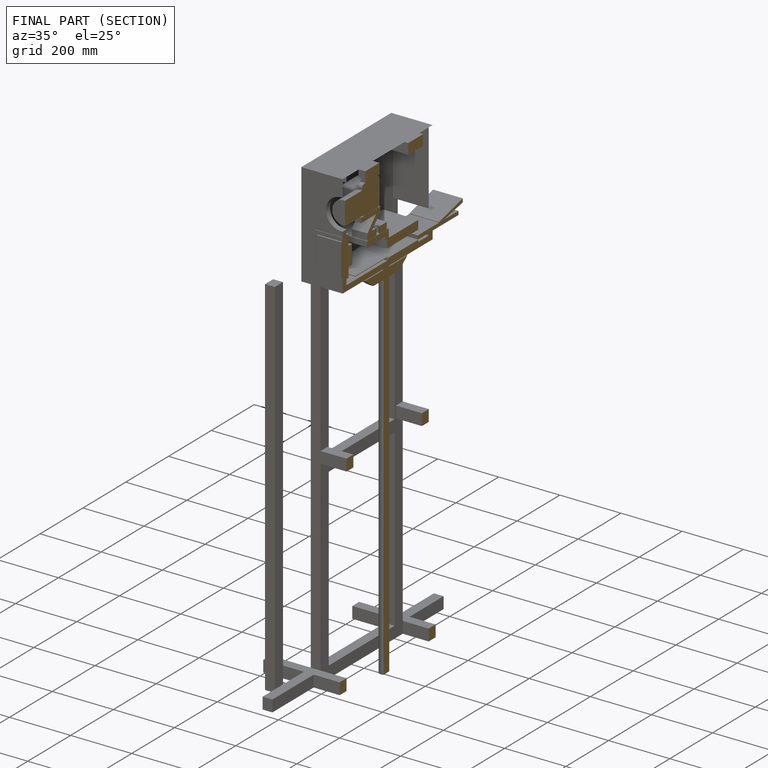
[diagram: finished part — half-section view (interior)]
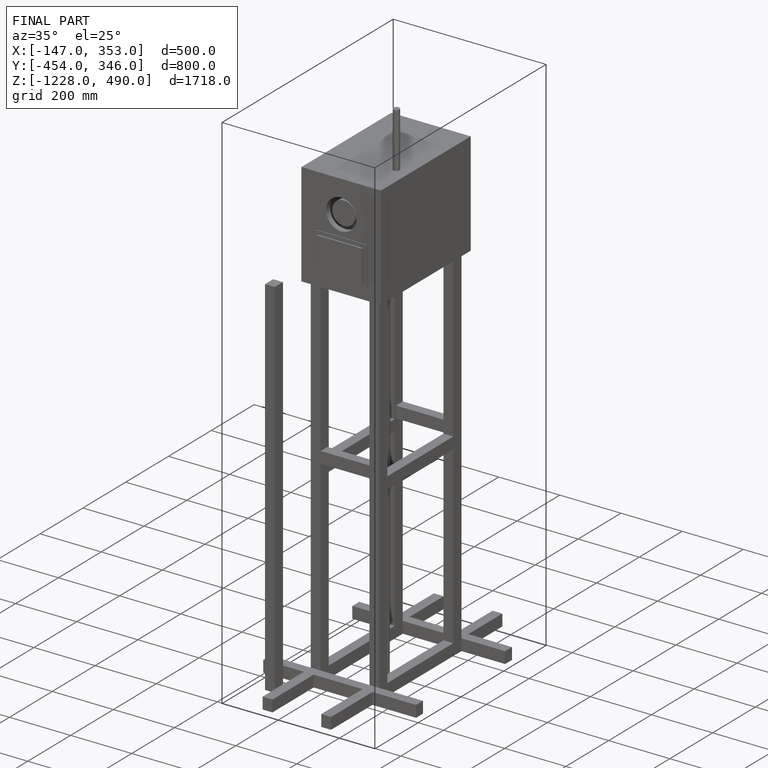
[diagram: finished part — iso view with bounding-box wireframe]
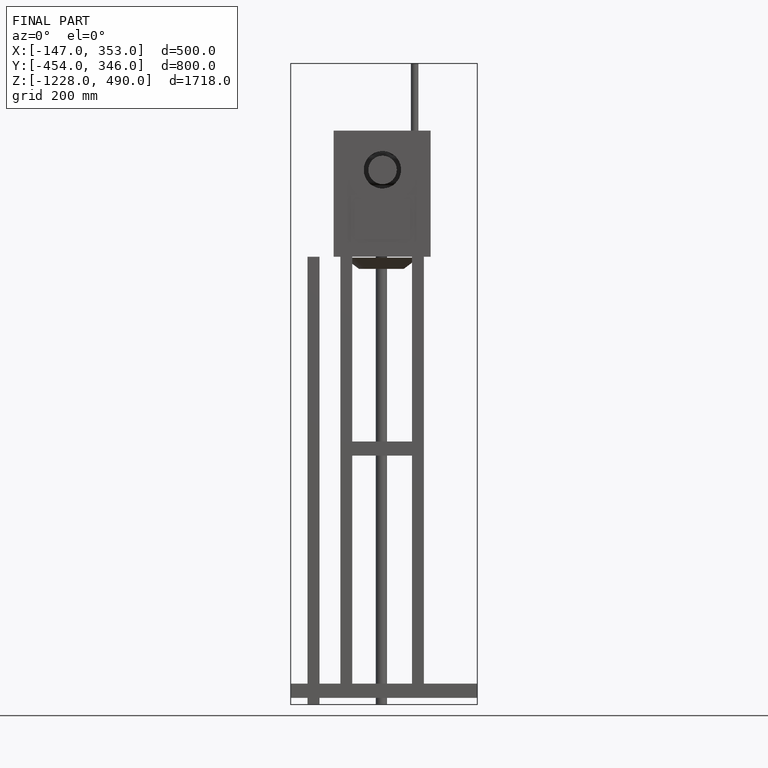
[diagram: finished part — front view with bounding-box wireframe]
